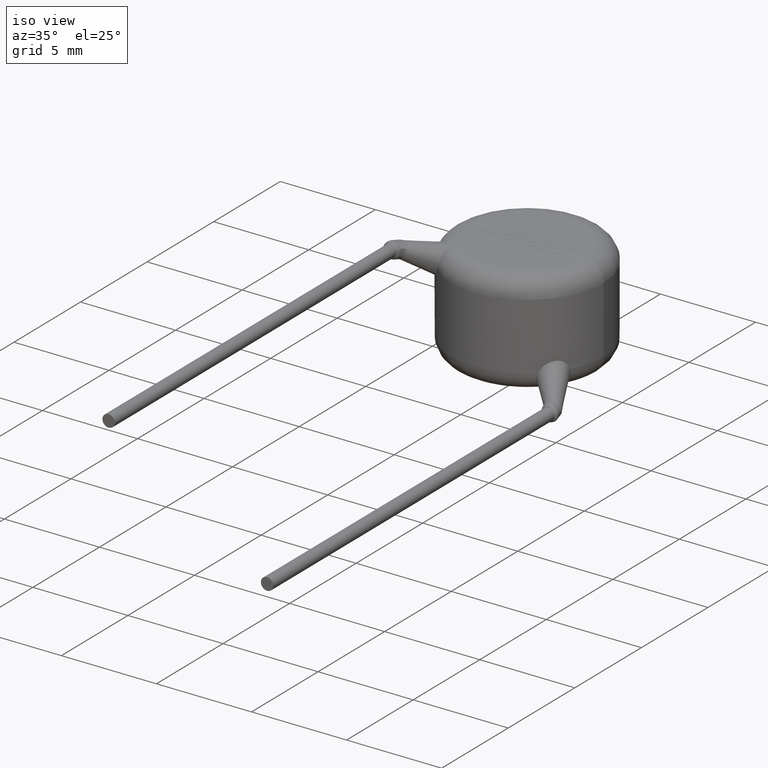
[diagram: clean part render]
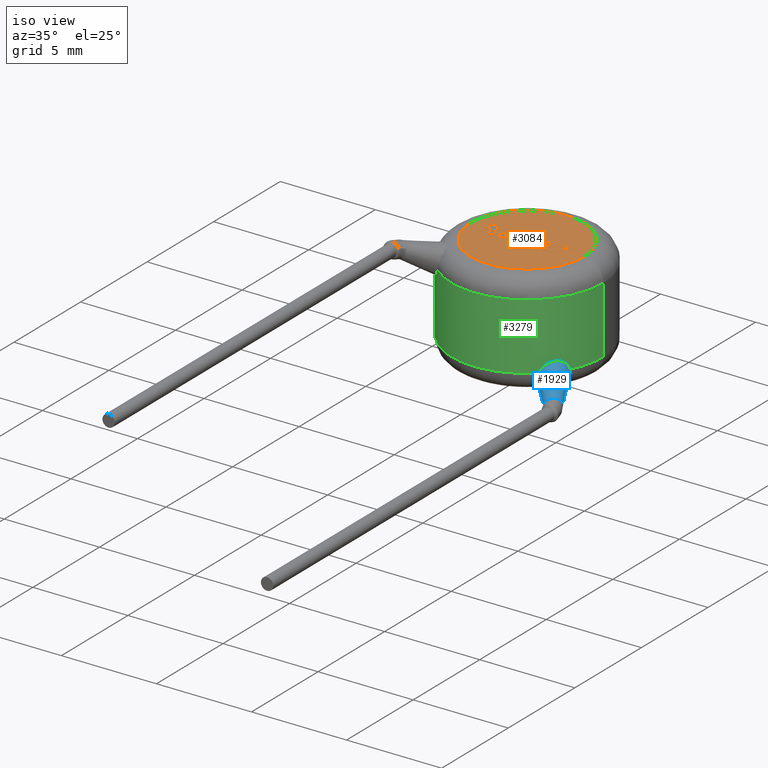
[diagram: same view with three faces highlighted in distinct colors, each labeled with its STEP entity id]
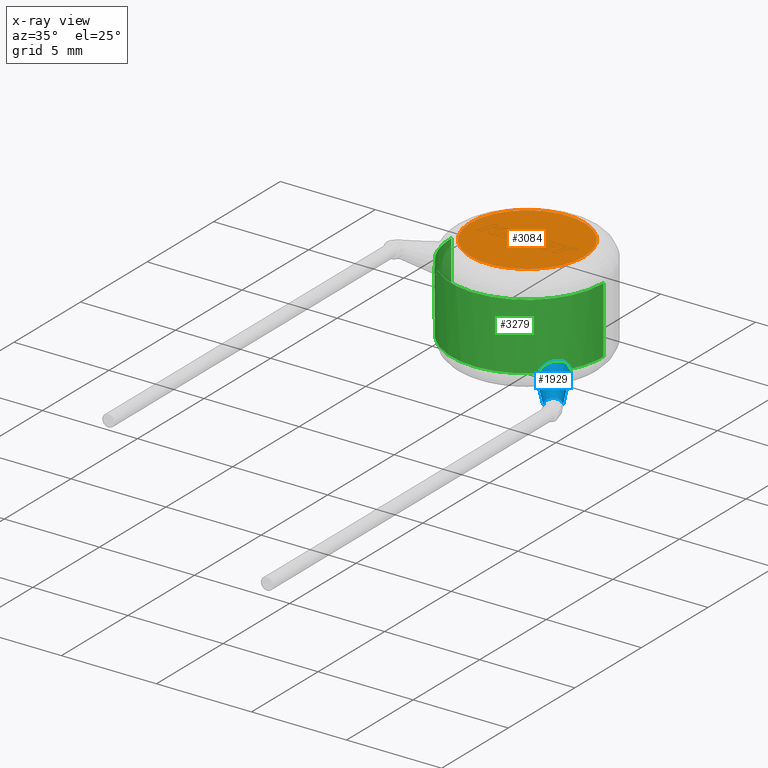
[diagram: x-ray of the same camera — body ghosted, the three highlighted faces saturated]
A machine part, iso view with three faces highlighted in distinct colors.
The next image is the same camera in x-ray (body ghosted, the three faces saturated) — at least one of them is partly hidden behind the body in this view.
Their STEP definitions:

[orange] entity #3084 — the highlighted planar face has unit normal (0, 0, 1).
#307 = DIRECTION ( 'NONE',  ( 1.000000000000000000, 0.0000000000000000000, 0.0000000000000000000 ) ) ;
#616 = AXIS2_PLACEMENT_3D ( 'NONE', #4281, #3896, #3878 ) ;
#657 = DIRECTION ( 'NONE',  ( 0.0000000000000000000, 0.0000000000000000000, 1.000000000000000000 ) ) ;
#686 = VERTEX_POINT ( 'NONE', #3726 ) ;
#865 = ORIENTED_EDGE ( 'NONE', *, *, #1539, .T. ) ;
#991 = PLANE ( 'NONE',  #3762 ) ;
#1539 = EDGE_CURVE ( 'NONE', #686, #2078, #3685, .T. ) ;
#1600 = CARTESIAN_POINT ( 'NONE',  ( 0.0000000000000000000, 0.0000000000000000000, 5.500000000000000000 ) ) ;
#1765 = FACE_OUTER_BOUND ( 'NONE', #3858, .T. ) ;
#1964 = DIRECTION ( 'NONE',  ( 0.0000000000000000000, 0.0000000000000000000, 1.000000000000000000 ) ) ;
#2078 = VERTEX_POINT ( 'NONE', #2789 ) ;
#2309 = CARTESIAN_POINT ( 'NONE',  ( 0.0000000000000000000, 0.0000000000000000000, 5.500000000000000000 ) ) ;
#2430 = CIRCLE ( 'NONE', #3023, 3.000000000000000000 ) ;
#2592 = DIRECTION ( 'NONE',  ( 1.000000000000000000, 0.0000000000000000000, -0.0000000000000000000 ) ) ;
#2789 = CARTESIAN_POINT ( 'NONE',  ( 3.000000000000000000, 0.0000000000000000000, 5.500000000000000000 ) ) ;
#3008 = EDGE_CURVE ( 'NONE', #2078, #686, #2430, .T. ) ;
#3023 = AXIS2_PLACEMENT_3D ( 'NONE', #1600, #657, #307 ) ;
#3084 = ADVANCED_FACE ( 'NONE', ( #1765 ), #991, .T. ) ;
#3685 = CIRCLE ( 'NONE', #616, 3.000000000000000000 ) ;
#3726 = CARTESIAN_POINT ( 'NONE',  ( -3.000000000000000000, 4.286263797015736600E-016, 5.500000000000000000 ) ) ;
#3762 = AXIS2_PLACEMENT_3D ( 'NONE', #2309, #1964, #2592 ) ;
#3814 = ORIENTED_EDGE ( 'NONE', *, *, #3008, .T. ) ;
#3858 = EDGE_LOOP ( 'NONE', ( #3814, #865 ) ) ;
#3878 = DIRECTION ( 'NONE',  ( 1.000000000000000000, 0.0000000000000000000, 0.0000000000000000000 ) ) ;
#3896 = DIRECTION ( 'NONE',  ( 0.0000000000000000000, 0.0000000000000000000, 1.000000000000000000 ) ) ;
#4281 = CARTESIAN_POINT ( 'NONE',  ( 0.0000000000000000000, 0.0000000000000000000, 5.500000000000000000 ) ) ;

[blue] entity #1929 — the highlighted conical surface has half-angle 10 deg.
#63 = CARTESIAN_POINT ( 'NONE',  ( 2.712433693064320900, -2.940252514311688900, 1.141654429346572500 ) ) ;
#165 = CARTESIAN_POINT ( 'NONE',  ( 2.629047251869808900, -3.014955386813097600, 0.8926327732432735000 ) ) ;
#195 = CARTESIAN_POINT ( 'NONE',  ( 3.618889066898015800, -3.967265205462927400, 0.1233367037697701400 ) ) ;
#270 = CARTESIAN_POINT ( 'NONE',  ( 4.306953954581519600, -3.468199367785211900, 0.1233367037697703100 ) ) ;
#312 = EDGE_CURVE ( 'NONE', #3817, #2527, #1938, .T. ) ;
#402 = CARTESIAN_POINT ( 'NONE',  ( 3.063780033679038600, -2.576422272678658800, 1.509247254994009200 ) ) ;
#498 = VERTEX_POINT ( 'NONE', #1291 ) ;
#590 = LINE ( 'NONE', #3842, #2964 ) ;
#647 = DIRECTION ( 'NONE',  ( -0.8094881031571346000, -0.5871362796208935400, 0.0000000000000000000 ) ) ;
#677 = DIRECTION ( 'NONE',  ( -0.5471636869634909400, 0.7543776640110354500, 0.3626654652841543900 ) ) ;
#741 = CARTESIAN_POINT ( 'NONE',  ( 2.661119846902723300, -2.986375924163002300, 1.000000000000000000 ) ) ;
#770 = AXIS2_PLACEMENT_3D ( 'NONE', #2041, #2386, #1390 ) ;
#788 = AXIS2_PLACEMENT_3D ( 'NONE', #3573, #677, #2978 ) ;
#915 = EDGE_CURVE ( 'NONE', #4124, #1848, #3781, .T. ) ;
#1054 = ORIENTED_EDGE ( 'NONE', *, *, #4156, .F. ) ;
#1090 = ORIENTED_EDGE ( 'NONE', *, *, #1912, .F. ) ;
#1098 = CARTESIAN_POINT ( 'NONE',  ( 3.256480743666747600, -2.328096430144732700, 1.519776574684436500 ) ) ;
#1108 = B_SPLINE_CURVE_WITH_KNOTS ( 'NONE', 3,
 ( #741, #2706, #63, #3412, #1418, #2407, #402, #1098, #2425, #4026, #2374, #3720 ),
 .UNSPECIFIED., .F., .F.,
 ( 4, 2, 2, 2, 2, 4 ),
 ( 2.116058591031811700E-007, 0.0002349883300497755900, 0.0004697650542404479900, 0.0009393185026217923500, 0.001408871951003136600, 0.001878425399384481000 ),
 .UNSPECIFIED. ) ;
#1178 = CONICAL_SURFACE ( 'NONE', #770, 0.4249999999999623500, 0.1745329251994329800 ) ;
#1210 = CARTESIAN_POINT ( 'NONE',  ( 3.539845360637302400, -1.862657999412282700, 0.9999999999999997800 ) ) ;
#1282 = DIRECTION ( 'NONE',  ( -0.5471636869634909400, 0.7543776640110354500, 0.3626654652841543900 ) ) ;
#1291 = CARTESIAN_POINT ( 'NONE',  ( 4.010993191829845400, -3.871865109369732000, 0.5164743214427627300 ) ) ;
#1316 = CARTESIAN_POINT ( 'NONE',  ( 4.306953954581519600, -3.468199367785211900, 0.1233367037697704200 ) ) ;
#1390 = DIRECTION ( 'NONE',  ( -0.8094881031571346000, -0.5871362796208935400, 0.0000000000000000000 ) ) ;
#1415 = CARTESIAN_POINT ( 'NONE',  ( 3.539845360637302400, -1.862657999412282700, 0.9999999999999997800 ) ) ;
#1418 = CARTESIAN_POINT ( 'NONE',  ( 2.825174694990779700, -2.832404888705567300, 1.320211087144535200 ) ) ;
#1449 = CARTESIAN_POINT ( 'NONE',  ( 2.577864893748584900, -2.985163514911587200, 0.6705818948516829600 ) ) ;
#1545 = DIRECTION ( 'NONE',  ( -0.6794171750446872400, 0.6409618272189967500, 0.3571557619616150800 ) ) ;
#1564 = CARTESIAN_POINT ( 'NONE',  ( 3.535956434662465700, -1.832701021356655000, 0.8147166726467144300 ) ) ;
#1601 = CARTESIAN_POINT ( 'NONE',  ( 2.661119846902723300, -2.986375924163002300, 1.000000000000000000 ) ) ;
#1830 = FACE_OUTER_BOUND ( 'NONE', #2494, .T. ) ;
#1848 = VERTEX_POINT ( 'NONE', #3963 ) ;
#1858 = LINE ( 'NONE', #270, #3606 ) ;
#1912 = EDGE_CURVE ( 'NONE', #4124, #2527, #1108, .T. ) ;
#1929 = ADVANCED_FACE ( 'NONE', ( #1830 ), #1178, .T. ) ;
#1938 = B_SPLINE_CURVE_WITH_KNOTS ( 'NONE', 3,
 ( #2469, #2106, #4084, #1415 ),
 .UNSPECIFIED., .F., .F.,
 ( 4, 4 ),
 ( 0.002738296931238307300, 0.002924281675916345000 ),
 .UNSPECIFIED. ) ;
#2041 = CARTESIAN_POINT ( 'NONE',  ( 3.962921510739767500, -3.717732286624069600, 0.1233367037697702500 ) ) ;
#2081 = ORIENTED_EDGE ( 'NONE', *, *, #312, .T. ) ;
#2106 = CARTESIAN_POINT ( 'NONE',  ( 3.544558518074137200, -1.841227865053466800, 0.8760325203315024700 ) ) ;
#2185 = EDGE_CURVE ( 'NONE', #2924, #498, #2500, .T. ) ;
#2268 = DIRECTION ( 'NONE',  ( -0.3982849071320941900, 0.8448721172156157300, 0.3571557619616150300 ) ) ;
#2374 = CARTESIAN_POINT ( 'NONE',  ( 3.524787399133672200, -1.891274554456792200, 1.156480625622166700 ) ) ;
#2386 = DIRECTION ( 'NONE',  ( -0.5471636869634909400, 0.7543776640110354500, 0.3626654652841543900 ) ) ;
#2407 = CARTESIAN_POINT ( 'NONE',  ( 2.959463001196388700, -2.694085519739005500, 1.455880731829860600 ) ) ;
#2425 = CARTESIAN_POINT ( 'NONE',  ( 3.346367425350980100, -2.195147481349142300, 1.477549371598361400 ) ) ;
#2463 = CARTESIAN_POINT ( 'NONE',  ( 2.661119846902723300, -2.986375924163002300, 1.000000000000000000 ) ) ;
#2469 = CARTESIAN_POINT ( 'NONE',  ( 3.535956434662465700, -1.832701021356655000, 0.8147166726467144300 ) ) ;
#2494 = EDGE_LOOP ( 'NONE', ( #3387, #3398, #2629, #2081, #1090, #3303, #1054 ) ) ;
#2500 = CIRCLE ( 'NONE', #4057, 0.4249999999999623500 ) ;
#2527 = VERTEX_POINT ( 'NONE', #1210 ) ;
#2629 = ORIENTED_EDGE ( 'NONE', *, *, #3136, .T. ) ;
#2706 = CARTESIAN_POINT ( 'NONE',  ( 2.683213349977415800, -2.966688697567057400, 1.073960905004308400 ) ) ;
#2764 = CARTESIAN_POINT ( 'NONE',  ( 2.599454814573739700, -3.016087451580431900, 0.7781101310581628500 ) ) ;
#2924 = VERTEX_POINT ( 'NONE', #195 ) ;
#2964 = VECTOR ( 'NONE', #1545, 1000.000000000000100 ) ;
#2978 = DIRECTION ( 'NONE',  ( -0.8094881031571346000, -0.5871362796208935400, 0.0000000000000000000 ) ) ;
#3031 = CIRCLE ( 'NONE', #788, 0.4249999999999623500 ) ;
#3136 = EDGE_CURVE ( 'NONE', #3616, #3817, #1858, .T. ) ;
#3303 = ORIENTED_EDGE ( 'NONE', *, *, #915, .T. ) ;
#3387 = ORIENTED_EDGE ( 'NONE', *, *, #2185, .T. ) ;
#3398 = ORIENTED_EDGE ( 'NONE', *, *, #3857, .T. ) ;
#3412 = CARTESIAN_POINT ( 'NONE',  ( 2.783357083536972100, -2.873204610310813300, 1.265040971547945800 ) ) ;
#3573 = CARTESIAN_POINT ( 'NONE',  ( 3.962921510739767500, -3.717732286624069600, 0.1233367037697702500 ) ) ;
#3606 = VECTOR ( 'NONE', #2268, 1000.000000000000200 ) ;
#3616 = VERTEX_POINT ( 'NONE', #1316 ) ;
#3720 = CARTESIAN_POINT ( 'NONE',  ( 3.539845360637302400, -1.862657999412282700, 0.9999999999999997800 ) ) ;
#3781 = B_SPLINE_CURVE_WITH_KNOTS ( 'NONE', 3,
 ( #2463, #165, #2764, #1449 ),
 .UNSPECIFIED., .F., .F.,
 ( 4, 4 ),
 ( 2.127056053094546900E-007, 0.0003427698808594892800 ),
 .UNSPECIFIED. ) ;
#3817 = VERTEX_POINT ( 'NONE', #1564 ) ;
#3836 = CARTESIAN_POINT ( 'NONE',  ( 3.962921510739767500, -3.717732286624069600, 0.1233367037697702500 ) ) ;
#3842 = CARTESIAN_POINT ( 'NONE',  ( 3.618889066898015800, -3.967265205462927400, 0.1233367037697702500 ) ) ;
#3857 = EDGE_CURVE ( 'NONE', #498, #3616, #3031, .T. ) ;
#3963 = CARTESIAN_POINT ( 'NONE',  ( 2.577864893748584900, -2.985163514911587200, 0.6705818948516829600 ) ) ;
#4026 = CARTESIAN_POINT ( 'NONE',  ( 3.481640194250245700, -1.973582774576417200, 1.295456504106801600 ) ) ;
#4057 = AXIS2_PLACEMENT_3D ( 'NONE', #3836, #1282, #647 ) ;
#4084 = CARTESIAN_POINT ( 'NONE',  ( 3.545773946085354100, -1.851391156173349200, 0.9383908134287717300 ) ) ;
#4124 = VERTEX_POINT ( 'NONE', #1601 ) ;
#4156 = EDGE_CURVE ( 'NONE', #2924, #1848, #590, .T. ) ;

[green] entity #3279 — the highlighted cylindrical surface (partial cylindrical patch) has radius 4 mm, axis along (-0, -0, -1).
#29 = EDGE_CURVE ( 'NONE', #3965, #3223, #3645, .T. ) ;
#36 = B_SPLINE_CURVE_WITH_KNOTS ( 'NONE', 3,
 ( #173, #1770, #2755, #783, #4075, #3386, #1768, #146, #2475, #480 ),
 .UNSPECIFIED., .F., .F.,
 ( 4, 2, 2, 2, 4 ),
 ( 2.014060113054420800E-007, 0.0003861196611869697400, 0.0007720379163626337200, 0.001157956171538297600, 0.001543874426713961700 ),
 .UNSPECIFIED. ) ;
#63 = CARTESIAN_POINT ( 'NONE',  ( 2.712433693064320900, -2.940252514311688900, 1.141654429346572500 ) ) ;
#122 = CIRCLE ( 'NONE', #3850, 4.000000000000000000 ) ;
#146 = CARTESIAN_POINT ( 'NONE',  ( -2.945153409109198900, -2.709475763341126200, 4.059346706277083600 ) ) ;
#173 = CARTESIAN_POINT ( 'NONE',  ( -3.539845360636235200, -1.862657999414310700, 4.499999999988736100 ) ) ;
#225 = CIRCLE ( 'NONE', #1867, 4.000000000000000000 ) ;
#246 = CARTESIAN_POINT ( 'NONE',  ( -4.000000000000000000, 0.0000000000000000000, 1.000000000000000000 ) ) ;
#344 = CARTESIAN_POINT ( 'NONE',  ( -3.539845360636235200, -1.862657999414310700, 4.499999999988736100 ) ) ;
#377 = CARTESIAN_POINT ( 'NONE',  ( 0.0000000000000000000, 0.0000000000000000000, 5.500000000000000000 ) ) ;
#399 = EDGE_CURVE ( 'NONE', #1859, #3199, #3251, .T. ) ;
#402 = CARTESIAN_POINT ( 'NONE',  ( 3.063780033679038600, -2.576422272678658800, 1.509247254994009200 ) ) ;
#480 = CARTESIAN_POINT ( 'NONE',  ( -2.800140089070654700, -2.856434049926478600, 4.216464619313583700 ) ) ;
#583 = CARTESIAN_POINT ( 'NONE',  ( 0.0000000000000000000, 0.0000000000000000000, 1.000000000000000000 ) ) ;
#634 = ORIENTED_EDGE ( 'NONE', *, *, #1711, .T. ) ;
#741 = CARTESIAN_POINT ( 'NONE',  ( 2.661119846902723300, -2.986375924163002300, 1.000000000000000000 ) ) ;
#783 = CARTESIAN_POINT ( 'NONE',  ( -3.400522417695068400, -2.108436449612800500, 4.080094091437888300 ) ) ;
#804 = LINE ( 'NONE', #916, #4002 ) ;
#879 = CARTESIAN_POINT ( 'NONE',  ( 0.0000000000000000000, 0.0000000000000000000, 4.500000000000000000 ) ) ;
#897 = AXIS2_PLACEMENT_3D ( 'NONE', #377, #2031, #3401 ) ;
#916 = CARTESIAN_POINT ( 'NONE',  ( -4.000000000000000000, 0.0000000000000000000, 5.500000000000000000 ) ) ;
#923 = DIRECTION ( 'NONE',  ( 0.0000000000000000000, 0.0000000000000000000, 1.000000000000000000 ) ) ;
#998 = CIRCLE ( 'NONE', #3318, 4.000000000000000000 ) ;
#1098 = CARTESIAN_POINT ( 'NONE',  ( 3.256480743666747600, -2.328096430144732700, 1.519776574684436500 ) ) ;
#1108 = B_SPLINE_CURVE_WITH_KNOTS ( 'NONE', 3,
 ( #741, #2706, #63, #3412, #1418, #2407, #402, #1098, #2425, #4026, #2374, #3720 ),
 .UNSPECIFIED., .F., .F.,
 ( 4, 2, 2, 2, 2, 4 ),
 ( 2.116058591031811700E-007, 0.0002349883300497755900, 0.0004697650542404479900, 0.0009393185026217923500, 0.001408871951003136600, 0.001878425399384481000 ),
 .UNSPECIFIED. ) ;
#1210 = CARTESIAN_POINT ( 'NONE',  ( 3.539845360637302400, -1.862657999412282700, 0.9999999999999997800 ) ) ;
#1231 = CARTESIAN_POINT ( 'NONE',  ( -2.800140089070654700, -2.856434049926478600, 4.216464619313583700 ) ) ;
#1255 = DIRECTION ( 'NONE',  ( -0.0000000000000000000, -0.0000000000000000000, -1.000000000000000000 ) ) ;
#1270 = CARTESIAN_POINT ( 'NONE',  ( -4.000000000000000000, 0.0000000000000000000, 4.500000000000000000 ) ) ;
#1302 = EDGE_LOOP ( 'NONE', ( #3336, #2186, #3719, #3722, #634, #3767, #2275, #4020, #2690 ) ) ;
#1359 = CARTESIAN_POINT ( 'NONE',  ( -2.800140089070654700, -2.856434049926478600, 4.216464619313583700 ) ) ;
#1418 = CARTESIAN_POINT ( 'NONE',  ( 2.825174694990779700, -2.832404888705567300, 1.320211087144535200 ) ) ;
#1419 = EDGE_CURVE ( 'NONE', #2154, #3675, #804, .T. ) ;
#1504 = DIRECTION ( 'NONE',  ( 1.000000000000000000, 0.0000000000000000000, 0.0000000000000000000 ) ) ;
#1549 = CARTESIAN_POINT ( 'NONE',  ( -2.693173538190379600, -2.957813306388758200, 4.392696056014779400 ) ) ;
#1601 = CARTESIAN_POINT ( 'NONE',  ( 2.661119846902723300, -2.986375924163002300, 1.000000000000000000 ) ) ;
#1647 = DIRECTION ( 'NONE',  ( 1.000000000000000000, 3.552713678800500900E-015, 0.0000000000000000000 ) ) ;
#1711 = EDGE_CURVE ( 'NONE', #1821, #2154, #225, .T. ) ;
#1713 = CARTESIAN_POINT ( 'NONE',  ( 4.000000000000000000, 4.898587196589412800E-016, 5.500000000000000000 ) ) ;
#1768 = CARTESIAN_POINT ( 'NONE',  ( -3.106363885732178700, -2.523032089518359600, 3.983199881616583200 ) ) ;
#1770 = CARTESIAN_POINT ( 'NONE',  ( -3.527553667404891500, -1.886017463831835900, 4.372266120063521600 ) ) ;
#1810 = CYLINDRICAL_SURFACE ( 'NONE', #897, 4.000000000000000000 ) ;
#1821 = VERTEX_POINT ( 'NONE', #344 ) ;
#1859 = VERTEX_POINT ( 'NONE', #1359 ) ;
#1867 = AXIS2_PLACEMENT_3D ( 'NONE', #879, #3168, #1647 ) ;
#1912 = EDGE_CURVE ( 'NONE', #4124, #2527, #1108, .T. ) ;
#2025 = EDGE_CURVE ( 'NONE', #2527, #3223, #122, .T. ) ;
#2031 = DIRECTION ( 'NONE',  ( -0.0000000000000000000, -0.0000000000000000000, -1.000000000000000000 ) ) ;
#2154 = VERTEX_POINT ( 'NONE', #1270 ) ;
#2186 = ORIENTED_EDGE ( 'NONE', *, *, #3093, .T. ) ;
#2216 = DIRECTION ( 'NONE',  ( -0.0000000000000000000, -0.0000000000000000000, -1.000000000000000000 ) ) ;
#2275 = ORIENTED_EDGE ( 'NONE', *, *, #3852, .T. ) ;
#2374 = CARTESIAN_POINT ( 'NONE',  ( 3.524787399133672200, -1.891274554456792200, 1.156480625622166700 ) ) ;
#2407 = CARTESIAN_POINT ( 'NONE',  ( 2.959463001196388700, -2.694085519739005500, 1.455880731829860600 ) ) ;
#2413 = AXIS2_PLACEMENT_3D ( 'NONE', #583, #923, #3215 ) ;
#2425 = CARTESIAN_POINT ( 'NONE',  ( 3.346367425350980100, -2.195147481349142300, 1.477549371598361400 ) ) ;
#2475 = CARTESIAN_POINT ( 'NONE',  ( -2.866083415247738600, -2.791790320014398800, 4.126990155504075600 ) ) ;
#2527 = VERTEX_POINT ( 'NONE', #1210 ) ;
#2686 = DIRECTION ( 'NONE',  ( -0.0000000000000000000, -0.0000000000000000000, -1.000000000000000000 ) ) ;
#2690 = ORIENTED_EDGE ( 'NONE', *, *, #2025, .T. ) ;
#2706 = CARTESIAN_POINT ( 'NONE',  ( 2.683213349977415800, -2.966688697567057400, 1.073960905004308400 ) ) ;
#2755 = CARTESIAN_POINT ( 'NONE',  ( -3.496946020109413600, -1.944331635226735500, 4.255799728834792200 ) ) ;
#2889 = FACE_OUTER_BOUND ( 'NONE', #1302, .T. ) ;
#3093 = EDGE_CURVE ( 'NONE', #3965, #3199, #998, .T. ) ;
#3168 = DIRECTION ( 'NONE',  ( -0.0000000000000000000, -0.0000000000000000000, -1.000000000000000000 ) ) ;
#3199 = VERTEX_POINT ( 'NONE', #3885 ) ;
#3215 = DIRECTION ( 'NONE',  ( 1.000000000000000000, 0.0000000000000000000, 0.0000000000000000000 ) ) ;
#3223 = VERTEX_POINT ( 'NONE', #4273 ) ;
#3251 = B_SPLINE_CURVE_WITH_KNOTS ( 'NONE', 3,
 ( #1231, #3508, #1549, #3784 ),
 .UNSPECIFIED., .F., .F.,
 ( 4, 4 ),
 ( 0.001543874426713961700, 0.001886465727452908400 ),
 .UNSPECIFIED. ) ;
#3279 = ADVANCED_FACE ( 'NONE', ( #2889 ), #1810, .T. ) ;
#3318 = AXIS2_PLACEMENT_3D ( 'NONE', #3452, #1255, #3525 ) ;
#3336 = ORIENTED_EDGE ( 'NONE', *, *, #29, .F. ) ;
#3362 = EDGE_CURVE ( 'NONE', #1821, #1859, #36, .T. ) ;
#3386 = CARTESIAN_POINT ( 'NONE',  ( -3.188942936103713200, -2.417991317000789000, 3.974518646775051100 ) ) ;
#3401 = DIRECTION ( 'NONE',  ( -1.000000000000000000, 0.0000000000000000000, 0.0000000000000000000 ) ) ;
#3412 = CARTESIAN_POINT ( 'NONE',  ( 2.783357083536972100, -2.873204610310813300, 1.265040971547945800 ) ) ;
#3452 = CARTESIAN_POINT ( 'NONE',  ( 0.0000000000000000000, 0.0000000000000000000, 4.500000000000000000 ) ) ;
#3508 = CARTESIAN_POINT ( 'NONE',  ( -2.741600205074298500, -2.913820243033916800, 4.295893805490502300 ) ) ;
#3525 = DIRECTION ( 'NONE',  ( 1.000000000000000000, 0.0000000000000000000, 0.0000000000000000000 ) ) ;
#3645 = LINE ( 'NONE', #1713, #4009 ) ;
#3675 = VERTEX_POINT ( 'NONE', #246 ) ;
#3719 = ORIENTED_EDGE ( 'NONE', *, *, #399, .F. ) ;
#3720 = CARTESIAN_POINT ( 'NONE',  ( 3.539845360637302400, -1.862657999412282700, 0.9999999999999997800 ) ) ;
#3722 = ORIENTED_EDGE ( 'NONE', *, *, #3362, .F. ) ;
#3767 = ORIENTED_EDGE ( 'NONE', *, *, #1419, .T. ) ;
#3773 = CARTESIAN_POINT ( 'NONE',  ( 0.0000000000000000000, 0.0000000000000000000, 1.000000000000000000 ) ) ;
#3784 = CARTESIAN_POINT ( 'NONE',  ( -2.661119846902723300, -2.986375924163002300, 4.500000000000000000 ) ) ;
#3850 = AXIS2_PLACEMENT_3D ( 'NONE', #3773, #4076, #1504 ) ;
#3852 = EDGE_CURVE ( 'NONE', #3675, #4124, #4263, .T. ) ;
#3885 = CARTESIAN_POINT ( 'NONE',  ( -2.661119846902723300, -2.986375924163002300, 4.500000000000000000 ) ) ;
#3965 = VERTEX_POINT ( 'NONE', #4218 ) ;
#4002 = VECTOR ( 'NONE', #2216, 1000.000000000000000 ) ;
#4009 = VECTOR ( 'NONE', #2686, 1000.000000000000000 ) ;
#4020 = ORIENTED_EDGE ( 'NONE', *, *, #1912, .T. ) ;
#4026 = CARTESIAN_POINT ( 'NONE',  ( 3.481640194250245700, -1.973582774576417200, 1.295456504106801600 ) ) ;
#4075 = CARTESIAN_POINT ( 'NONE',  ( -3.335516295331964800, -2.211418120209724500, 4.022590271961171000 ) ) ;
#4076 = DIRECTION ( 'NONE',  ( 0.0000000000000000000, 0.0000000000000000000, 1.000000000000000000 ) ) ;
#4124 = VERTEX_POINT ( 'NONE', #1601 ) ;
#4218 = CARTESIAN_POINT ( 'NONE',  ( 4.000000000000000000, 4.898587196589412800E-016, 4.500000000000000000 ) ) ;
#4263 = CIRCLE ( 'NONE', #2413, 4.000000000000000000 ) ;
#4273 = CARTESIAN_POINT ( 'NONE',  ( 4.000000000000000000, 4.898587196589412800E-016, 1.000000000000000000 ) ) ;